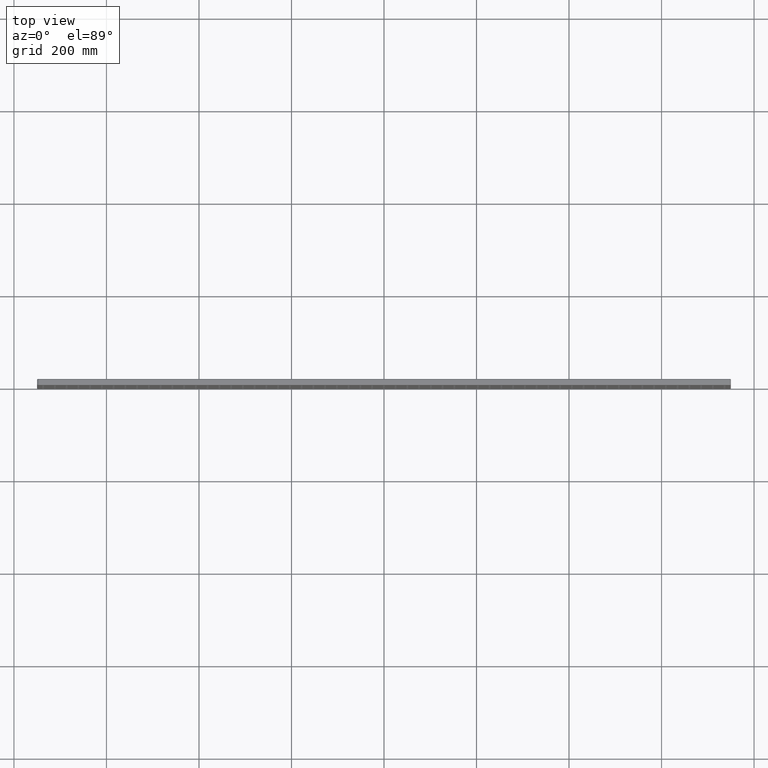
[diagram: clean part render]
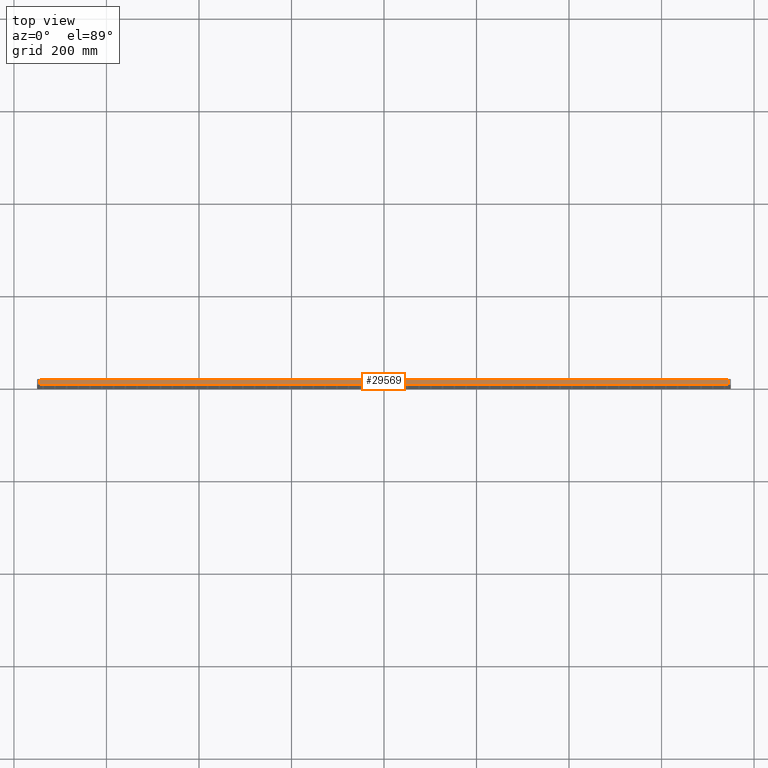
[diagram: same view with one face highlighted and labeled with its STEP entity id]
A machine part, top view. The second image highlights one B-rep face of the part: STEP entity #29569.
In plain terms, the highlighted planar face has unit normal (0, 0, -1).
Its self-contained STEP definition (entity closure, byte-faithful):
#1447 = EDGE_LOOP ( 'NONE', ( #2490, #54180, #65901, #64874 ) ) ;
#2490 = ORIENTED_EDGE ( 'NONE', *, *, #63815, .T. ) ;
#4125 = DIRECTION ( 'NONE',  ( 0.0000000000000000000, 0.0000000000000000000, -1.000000000000000000 ) ) ;
#8025 = CARTESIAN_POINT ( 'NONE',  ( -744.9999999999998900, 13.00000000000000000, 250.0000000000000000 ) ) ;
#10246 = FACE_OUTER_BOUND ( 'NONE', #1447, .T. ) ;
#12915 = LINE ( 'NONE', #31162, #76181 ) ;
#13333 = EDGE_CURVE ( 'NONE', #80734, #65783, #56812, .T. ) ;
#15922 = CARTESIAN_POINT ( 'NONE',  ( 744.9999999999998900, 2.000000000000003600, 250.0000000000001100 ) ) ;
#17476 = CARTESIAN_POINT ( 'NONE',  ( 744.9999999999998900, 11.00000000000000000, 250.0000000000001100 ) ) ;
#20351 = VECTOR ( 'NONE', #73812, 1000.000000000000000 ) ;
#29569 = ADVANCED_FACE ( 'NONE', ( #10246 ), #50906, .F. ) ;
#30585 = AXIS2_PLACEMENT_3D ( 'NONE', #43174, #4125, #76532 ) ;
#31162 = CARTESIAN_POINT ( 'NONE',  ( -744.9999999999998900, 2.000000000000000000, 250.0000000000000000 ) ) ;
#31223 = CARTESIAN_POINT ( 'NONE',  ( 744.9999999999998900, 13.00000000000000000, 250.0000000000001100 ) ) ;
#41305 = CARTESIAN_POINT ( 'NONE',  ( -744.9999999999998900, 11.00000000000000000, 250.0000000000000000 ) ) ;
#41903 = CARTESIAN_POINT ( 'NONE',  ( -744.9999999999998900, 2.000000000000001800, 250.0000000000000000 ) ) ;
#43174 = CARTESIAN_POINT ( 'NONE',  ( -744.9999999999998900, 13.00000000000000000, 250.0000000000000000 ) ) ;
#43850 = LINE ( 'NONE', #41305, #20351 ) ;
#44595 = DIRECTION ( 'NONE',  ( -0.0000000000000000000, -1.000000000000000000, -0.0000000000000000000 ) ) ;
#45069 = CARTESIAN_POINT ( 'NONE',  ( -744.9999999999998900, 11.00000000000000000, 250.0000000000000000 ) ) ;
#46878 = LINE ( 'NONE', #8025, #48911 ) ;
#48911 = VECTOR ( 'NONE', #59086, 1000.000000000000000 ) ;
#50906 = PLANE ( 'NONE',  #30585 ) ;
#54180 = ORIENTED_EDGE ( 'NONE', *, *, #84281, .T. ) ;
#54728 = VERTEX_POINT ( 'NONE', #41903 ) ;
#56812 = LINE ( 'NONE', #31223, #74113 ) ;
#57967 = DIRECTION ( 'NONE',  ( 1.000000000000000000, -0.0000000000000000000, 0.0000000000000000000 ) ) ;
#59086 = DIRECTION ( 'NONE',  ( -0.0000000000000000000, -1.000000000000000000, -0.0000000000000000000 ) ) ;
#63815 = EDGE_CURVE ( 'NONE', #70781, #54728, #46878, .T. ) ;
#64874 = ORIENTED_EDGE ( 'NONE', *, *, #82371, .T. ) ;
#65783 = VERTEX_POINT ( 'NONE', #15922 ) ;
#65901 = ORIENTED_EDGE ( 'NONE', *, *, #13333, .F. ) ;
#70781 = VERTEX_POINT ( 'NONE', #45069 ) ;
#73812 = DIRECTION ( 'NONE',  ( -1.000000000000000000, -0.0000000000000000000, -0.0000000000000000000 ) ) ;
#74113 = VECTOR ( 'NONE', #44595, 1000.000000000000000 ) ;
#76181 = VECTOR ( 'NONE', #57967, 1000.000000000000000 ) ;
#76532 = DIRECTION ( 'NONE',  ( -1.000000000000000000, 0.0000000000000000000, -0.0000000000000000000 ) ) ;
#80734 = VERTEX_POINT ( 'NONE', #17476 ) ;
#82371 = EDGE_CURVE ( 'NONE', #80734, #70781, #43850, .T. ) ;
#84281 = EDGE_CURVE ( 'NONE', #54728, #65783, #12915, .T. ) ;